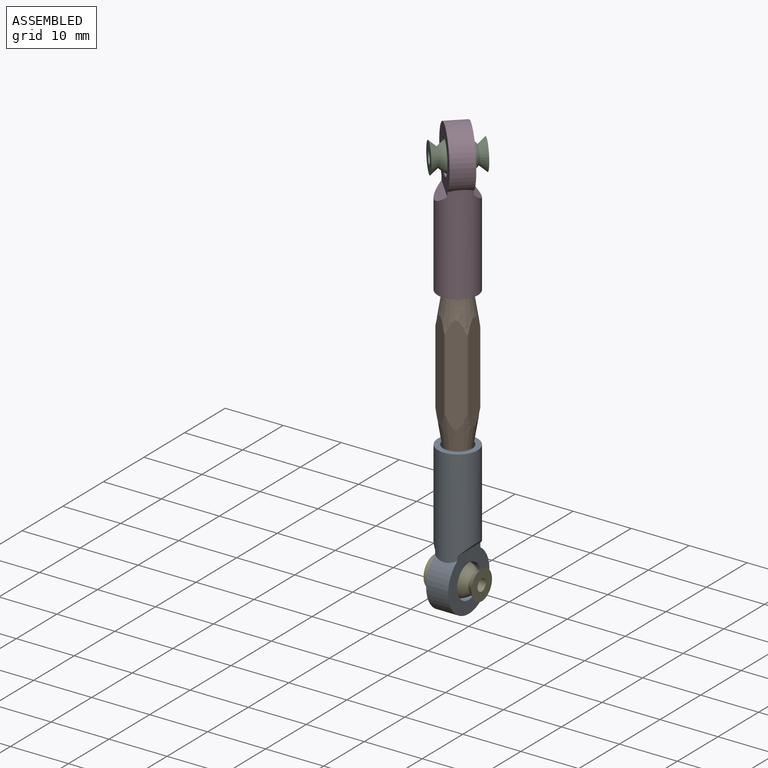
[diagram: assembled view]
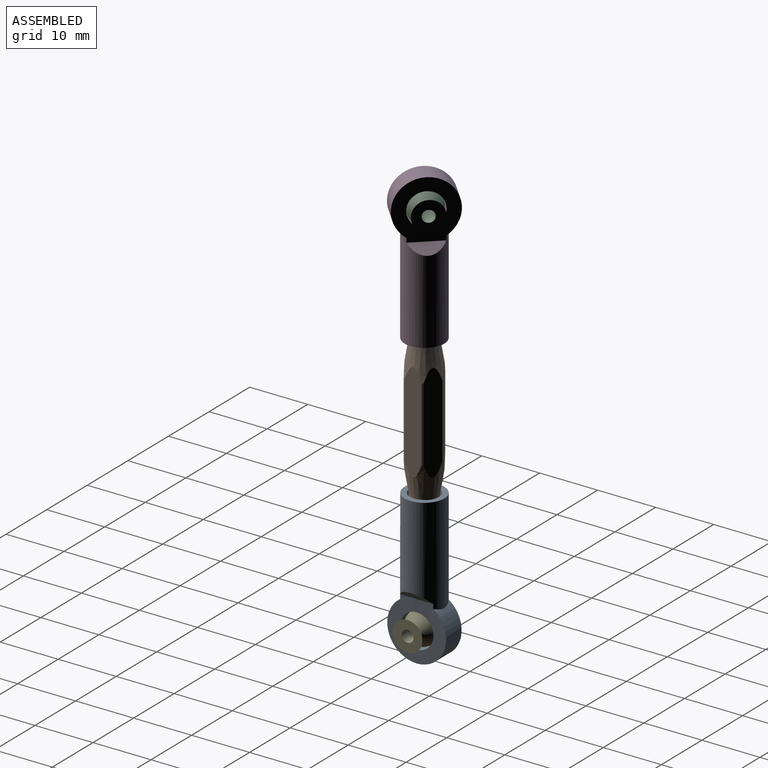
[diagram: assembled view, second angle]
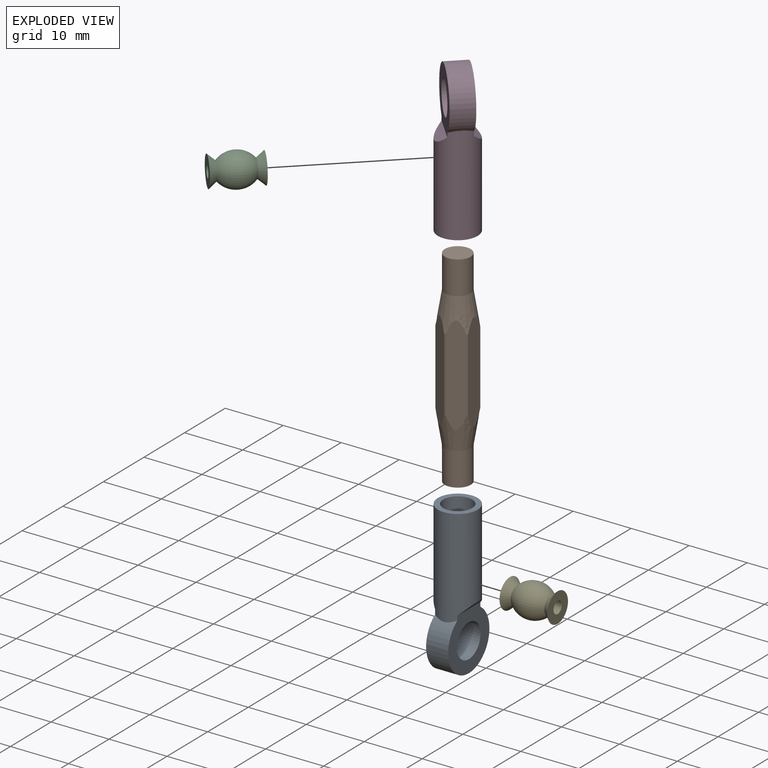
[diagram: exploded view]
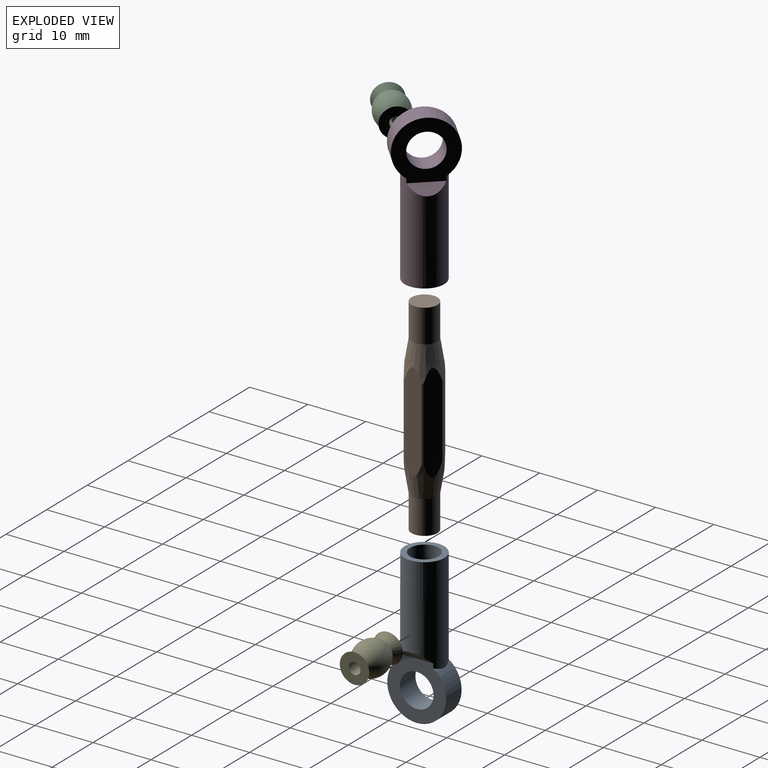
[diagram: exploded view, second angle]
ASSEMBLY  parts=5 mates=6
PART A: 10 faces, bbox 6.9x10.2x25.9 mm
  f0: cylinder r=3.43mm len=17.08mm, axis (0,0,-1), area 337mm2, adj f1,f2,f3,f4,f5,f6
  f1: plane 6.86x6.86mm, normal (0,0,-1), area 17.3mm2, adj f0,f8
  f2: plane 5.7x1.52mm, normal (-0.71,0,0.71), area 8.6mm2, adj f0,f3
  f3: plane 10.16x10.03mm, normal (-1,0,0), area 55.6mm2, adj f0,f2,f6,f9
  f4: plane 5.7x1.52mm, normal (0.71,0,0.71), area 8.6mm2, adj f0,f5
  f5: plane 10.16x10.03mm, normal (1,0,0), area 55.6mm2, adj f0,f4,f6,f9
  f6: cylinder r=5.08mm len=10.16mm, axis (1,0,0), area 94.8mm2, adj f0,f3,f5
  f7: cone r=2.5mm half-angle=59deg, axis (0,0,-1), area 22.9mm2, adj f8
  f8: cylinder r=2.5mm len=14.99mm, axis (0,0,-1), area 235.4mm2, adj f1,f7
  f9: cylinder r=2.9mm len=5.79mm, axis (-1,0,0), area 69.3mm2, adj f3,f5
PART B: 18 faces, bbox 6.4x6.4x35.6 mm
  f0: cylinder r=3.17mm len=12.7mm, axis (0,0,1), area 3.5mm2, adj f5,f7,f8,f13
  f1: cylinder r=3.17mm len=12.7mm, axis (0,0,1), area 3.5mm2, adj f5,f7,f11,f12
  f2: cylinder r=3.17mm len=12.7mm, axis (0,0,1), area 3.5mm2, adj f5,f7,f10,f11
  f3: cylinder r=3.17mm len=12.7mm, axis (0,0,1), area 3.5mm2, adj f5,f7,f9,f10
  f4: cylinder r=3.17mm len=12.7mm, axis (0,0,1), area 3.5mm2, adj f5,f7,f9,f13
  f5: cone r=2.24mm half-angle=9.3deg, axis (0,0,1), area 72.1mm2, adj f0,f1,f2,f3,f4,f6,f8,f9
  f6: cylinder r=3.17mm len=12.7mm, axis (0,0,1), area 3.5mm2, adj f5,f7,f8,f12
  f7: cone r=3.17mm half-angle=9.3deg, axis (0,0,-1), area 72.1mm2, adj f0,f1,f2,f3,f4,f6,f8,f9
  f8: plane 17.08x2.94mm, normal (-1,0,0), area 45.7mm2, adj f0,f5,f6,f7
  f9: plane 17.08x2.54mm, normal (0.5,-0.87,0), area 45.7mm2, adj f3,f4,f5,f7
  f10: plane 17.08x2.94mm, normal (1,0,0), area 45.7mm2, adj f2,f3,f5,f7
  f11: plane 17.08x2.54mm, normal (0.5,0.87,0), area 45.7mm2, adj f1,f2,f5,f7
  f12: plane 17.08x2.54mm, normal (-0.5,0.87,0), area 45.7mm2, adj f1,f5,f6,f7
  f13: plane 17.08x2.54mm, normal (-0.5,-0.87,0), area 45.7mm2, adj f0,f4,f5,f7
  f14: plane 4.47x4.47mm, normal (0,0,1), area 15.7mm2, adj f15
  f15: cylinder r=2.24mm len=5.72mm, axis (0,0,1), area 80.3mm2, adj f7,f14
  f16: cylinder r=2.24mm len=5.72mm, axis (0,0,1), area 80.3mm2, adj f5,f17
  f17: plane 4.47x4.47mm, normal (0,0,-1), area 15.7mm2, adj f16
PART C: 6 faces, bbox 5.7x5.7x8.3 mm
  f0: plane 5.08x5.08mm, normal (0,0,-1), area 17mm2, adj f1,f5
  f1: cylinder r=1.02mm len=8.26mm, axis (0,0,1), area 52.7mm2, adj f0,f2
  f2: plane 5.08x5.08mm, normal (0,0,1), area 17mm2, adj f1,f3
  f3: cone r=1.51mm half-angle=40deg, axis (0,0,1), area 20.4mm2, adj f2,f4
  f4: revolved ~5.8x5.73mm, area 99.8mm2, adj f3,f5
  f5: cone r=2.54mm half-angle=40deg, axis (0,0,-1), area 20.4mm2, adj f0,f4
PART D: same geometry as A
PART E: same geometry as C
PLACE A rot(axis=(0,1,0),180deg) t=(-1.47,5.13,-8.44)mm
PLACE B rot(axis=(1,0,0),180deg) t=(-1.47,5.13,3.63)mm
PLACE C rot(axis=(0.35,-0.87,0.35),97.8deg) t=(1.54,7.97,36.52)mm
PLACE D rot(axis=(0,0,1),43.3deg) t=(-1.47,5.13,15.69)mm
PLACE E rot(axis=(0,1,0),90deg) t=(-5.59,5.13,-29.26)mm
MATE ball C.f1 <-> D.f6  axis (-0.73,-0.69,0) through (-1.47,5.13,36.52)mm
MATE cylindrical B.f0 <-> D.f0  axis (0,0,-1) through (-1.47,5.13,15.69)mm
MATE planar A.f0 <-> B.f0  axis (0,0,1) through (-1.47,5.13,-8.44)mm
MATE cylindrical B.f0 <-> A.f0  axis (0,0,-1) through (-1.47,5.13,-8.44)mm
MATE planar D.f0 <-> B.f0  axis (0,0,-1) through (-1.47,5.13,15.69)mm
MATE ball E.f1 <-> A.f6  axis (1,0,0) through (-1.47,5.13,-29.26)mm
